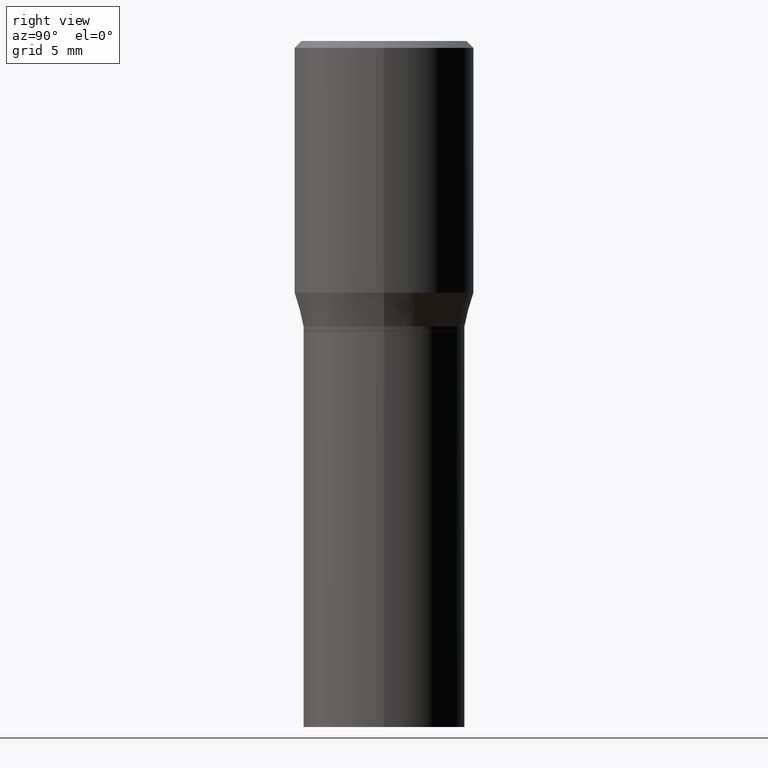
[diagram: clean part render]
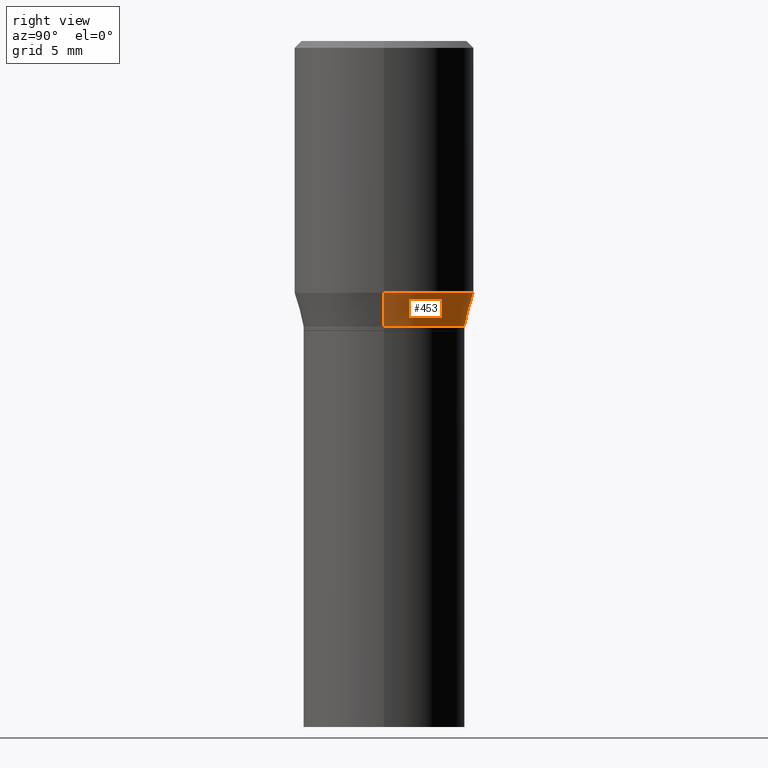
[diagram: same view with one face highlighted and labeled with its STEP entity id]
A machine part, right view. The second image highlights one B-rep face of the part: STEP entity #453.
In plain terms, the highlighted conical surface has half-angle 15 deg.
Its self-contained STEP definition (entity closure, byte-faithful):
#26 = CARTESIAN_POINT ( 'NONE',  ( 1.345933695668656235E-29, -1.921636608024489183E-15, -0.5503785990908939274 ) ) ;
#27 = LINE ( 'NONE', #457, #438 ) ;
#31 = AXIS2_PLACEMENT_3D ( 'NONE', #312, #85, #231 ) ;
#39 = CARTESIAN_POINT ( 'NONE',  ( 0.1771500000000001129, -3.415367045656361716E-15, -0.6239000000000001211 ) ) ;
#45 = ORIENTED_EDGE ( 'NONE', *, *, #195, .T. ) ;
#57 = FACE_OUTER_BOUND ( 'NONE', #382, .T. ) ;
#61 = DIRECTION ( 'NONE',  ( -2.445468806185136597E-29, 3.491481338843145583E-15, 1.000000000000000000 ) ) ;
#65 = ORIENTED_EDGE ( 'NONE', *, *, #427, .T. ) ;
#66 = DIRECTION ( 'NONE',  ( 0.2588190451025220717, 1.565188264969615854E-15, 0.9659258262890678681 ) ) ;
#85 = DIRECTION ( 'NONE',  ( -2.445468806185136597E-29, 3.491481338843145583E-15, 1.000000000000000000 ) ) ;
#96 = LINE ( 'NONE', #415, #122 ) ;
#105 = AXIS2_PLACEMENT_3D ( 'NONE', #421, #61, #164 ) ;
#116 = CIRCLE ( 'NONE', #150, 0.1968500000000000527 ) ;
#122 = VECTOR ( 'NONE', #66, 39.37007874015748854 ) ;
#143 = DIRECTION ( 'NONE',  ( -0.2588190451025220717, 5.211531920934554197E-15, 0.9659258262890678681 ) ) ;
#150 = AXIS2_PLACEMENT_3D ( 'NONE', #26, #379, #204 ) ;
#152 = ORIENTED_EDGE ( 'NONE', *, *, #224, .F. ) ;
#164 = DIRECTION ( 'NONE',  ( 1.000000000000000000, -6.982962677686265922E-15, 0.000000000000000000 ) ) ;
#186 = VERTEX_POINT ( 'NONE', #39 ) ;
#190 = ORIENTED_EDGE ( 'NONE', *, *, #395, .F. ) ;
#195 = EDGE_CURVE ( 'NONE', #186, #407, #325, .T. ) ;
#204 = DIRECTION ( 'NONE',  ( 1.000000000000000000, -6.982962677686267499E-15, 0.000000000000000000 ) ) ;
#224 = EDGE_CURVE ( 'NONE', #449, #348, #116, .T. ) ;
#231 = DIRECTION ( 'NONE',  ( 1.000000000000000000, -6.982962677686265922E-15, 0.000000000000000000 ) ) ;
#237 = CONICAL_SURFACE ( 'NONE', #31, 0.1771500000000001129, 0.2617993877991508511 ) ;
#293 = CARTESIAN_POINT ( 'NONE',  ( 0.1968500000000000527, -3.296232811127031185E-15, -0.5503785990908939274 ) ) ;
#312 = CARTESIAN_POINT ( 'NONE',  ( 1.525727988178907107E-29, -2.178335207304238928E-15, -0.6239000000000001211 ) ) ;
#325 = CIRCLE ( 'NONE', #105, 0.1771500000000001129 ) ;
#348 = VERTEX_POINT ( 'NONE', #378 ) ;
#378 = CARTESIAN_POINT ( 'NONE',  ( -0.1968500000000000527, -5.229332326807317894E-16, -0.5503785990908939274 ) ) ;
#379 = DIRECTION ( 'NONE',  ( -2.445468806185136597E-29, 3.491481338843145583E-15, 1.000000000000000000 ) ) ;
#382 = EDGE_LOOP ( 'NONE', ( #45, #65, #152, #190 ) ) ;
#390 = CARTESIAN_POINT ( 'NONE',  ( -0.1771500000000001129, -7.212709917929761191E-16, -0.6239000000000001211 ) ) ;
#395 = EDGE_CURVE ( 'NONE', #186, #449, #96, .T. ) ;
#407 = VERTEX_POINT ( 'NONE', #390 ) ;
#415 = CARTESIAN_POINT ( 'NONE',  ( 0.1771500000000001129, -3.415367045656361716E-15, -0.6239000000000001211 ) ) ;
#421 = CARTESIAN_POINT ( 'NONE',  ( 1.525727988178907107E-29, -2.178335207304238928E-15, -0.6239000000000001211 ) ) ;
#427 = EDGE_CURVE ( 'NONE', #407, #348, #27, .T. ) ;
#438 = VECTOR ( 'NONE', #143, 39.37007874015748854 ) ;
#449 = VERTEX_POINT ( 'NONE', #293 ) ;
#453 = ADVANCED_FACE ( 'NONE', ( #57 ), #237, .T. ) ;
#457 = CARTESIAN_POINT ( 'NONE',  ( -0.1771500000000001129, -9.196087509052206461E-16, -0.6239000000000001211 ) ) ;